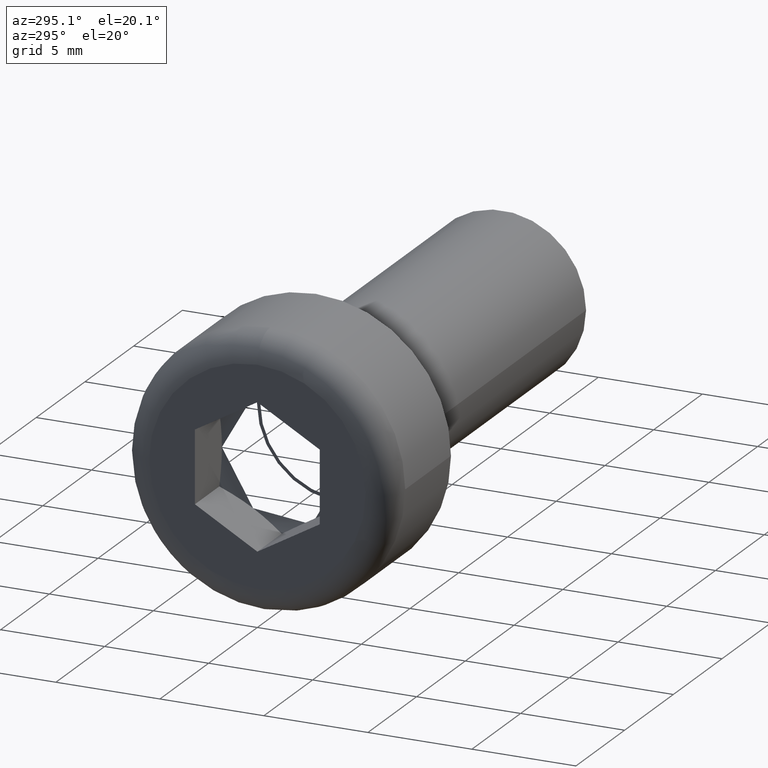
[diagram: clean part render]
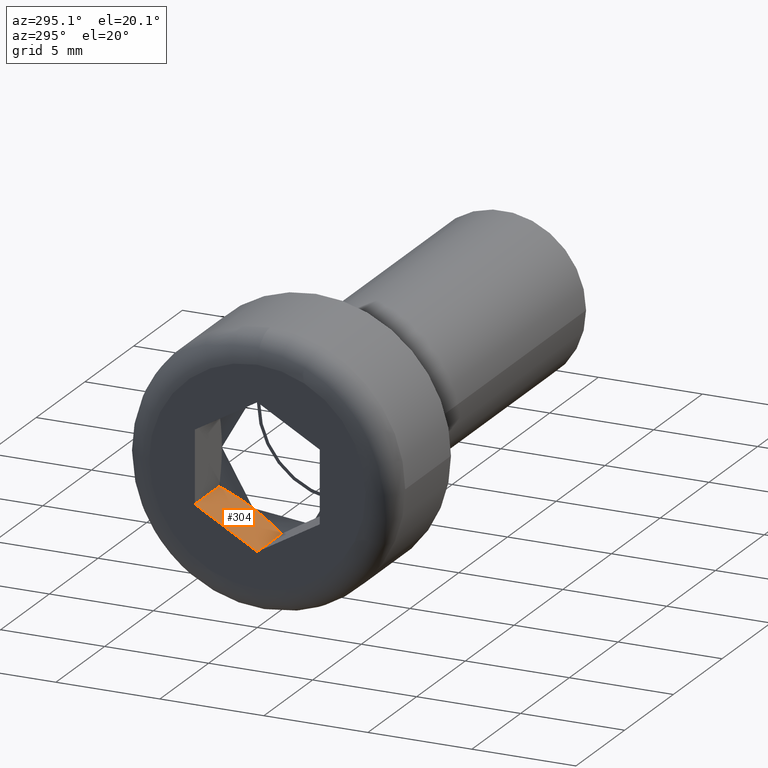
[diagram: same view with one face highlighted and labeled with its STEP entity id]
A machine part, auxiliary view. The second image highlights one B-rep face of the part: STEP entity #304.
In plain terms, the highlighted planar face has unit normal (0, 0.5, -0.866).
Its self-contained STEP definition (entity closure, byte-faithful):
#46=FACE_OUTER_BOUND('',#63,.T.);
#63=EDGE_LOOP('',(#207,#208,#209,#210));
#82=LINE('',#479,#100);
#85=LINE('',#489,#103);
#86=LINE('',#490,#104);
#100=VECTOR('',#381,10.);
#103=VECTOR('',#386,10.);
#104=VECTOR('',#387,10.);
#119=(
BOUNDED_CURVE()
B_SPLINE_CURVE(2,(#485,#486,#487),.UNSPECIFIED.,.F.,.F.)
B_SPLINE_CURVE_WITH_KNOTS((3,3),(0.0224841371605266,0.381496060373957),
 .UNSPECIFIED.)
CURVE()
GEOMETRIC_REPRESENTATION_ITEM()
RATIONAL_B_SPLINE_CURVE((1.02102355330306,1.17897644669694,1.02102355330306))
REPRESENTATION_ITEM('')
);
#125=VERTEX_POINT('',#473);
#127=VERTEX_POINT('',#478);
#129=VERTEX_POINT('',#484);
#130=VERTEX_POINT('',#488);
#159=EDGE_CURVE('',#127,#125,#82,.T.);
#162=EDGE_CURVE('',#129,#125,#119,.T.);
#163=EDGE_CURVE('',#130,#129,#85,.T.);
#164=EDGE_CURVE('',#127,#130,#86,.T.);
#207=ORIENTED_EDGE('',*,*,#162,.F.);
#208=ORIENTED_EDGE('',*,*,#163,.F.);
#209=ORIENTED_EDGE('',*,*,#164,.F.);
#210=ORIENTED_EDGE('',*,*,#159,.T.);
#294=PLANE('',#341);
#304=ADVANCED_FACE('',(#46),#294,.F.);
#341=AXIS2_PLACEMENT_3D('',#483,#384,#385);
#381=DIRECTION('',(1.,0.,0.));
#384=DIRECTION('center_axis',(0.,0.5,-0.866025403784439));
#385=DIRECTION('ref_axis',(-1.,0.,0.));
#386=DIRECTION('',(1.,0.,0.));
#387=DIRECTION('',(-1.98609093482624E-33,0.866025403784439,0.5));
#473=CARTESIAN_POINT('',(2.5,-3.46944695195361E-16,-3.46410161513775));
#478=CARTESIAN_POINT('',(-4.1633929657993E-16,-3.46944695195361E-16,-3.46410161513775));
#479=CARTESIAN_POINT('',(-4.1633929657993E-16,-3.46944695195361E-16,-3.46410161513775));
#483=CARTESIAN_POINT('Origin',(-4.1633929657993E-16,3.,-1.73205080756888));
#484=CARTESIAN_POINT('',(2.5,3.,-1.73205080756888));
#485=CARTESIAN_POINT('Ctrl Pts',(2.5,3.,-1.73205080756888));
#486=CARTESIAN_POINT('Ctrl Pts',(3.,1.5,-2.59807621135332));
#487=CARTESIAN_POINT('Ctrl Pts',(2.5,-3.46944695195361E-16,-3.46410161513775));
#488=CARTESIAN_POINT('',(-4.1633929657993E-16,3.,-1.73205080756888));
#489=CARTESIAN_POINT('',(-4.1633929657993E-16,3.,-1.73205080756888));
#490=CARTESIAN_POINT('',(-4.1633929657993E-16,2.25,-2.1650635094611));